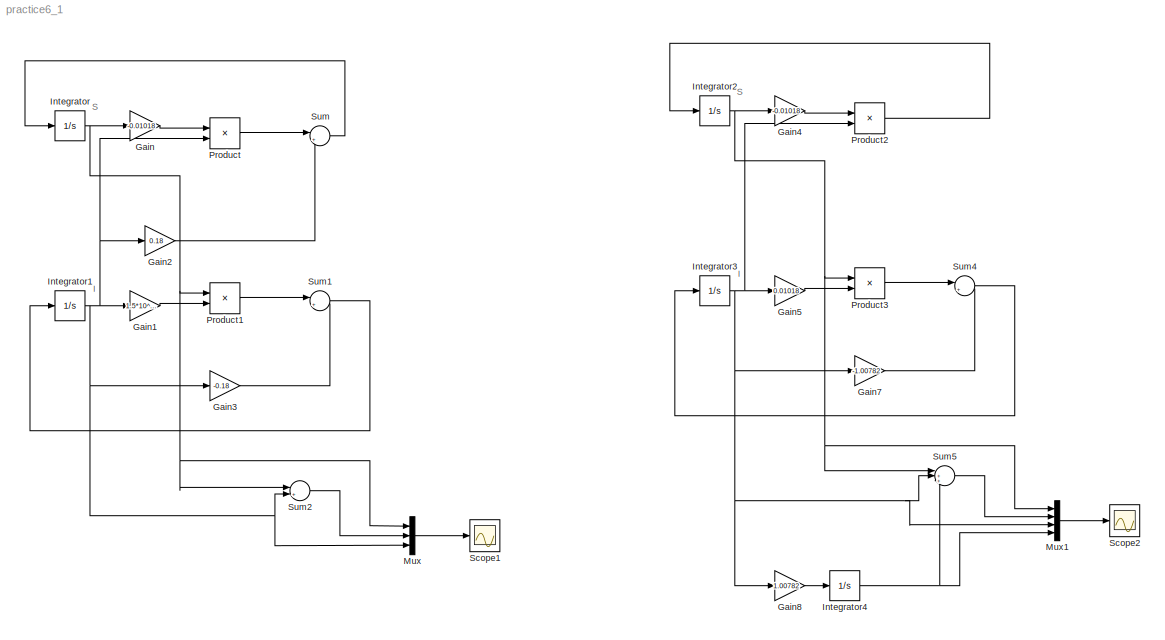
MODEL practice6_1
KIND model
BLOCK [Gain] Gain
  Gain = -0.01018
  OutDataTypeStr = Inherit: Inherit via internal rule
  ParamDataTypeStr = Inherit: Inherit via internal rule
  SID = 14
  SaturateOnIntegerOverflow = off
BLOCK [Gain] Gain1
  Gain = 1.5*10^-6
  OutDataTypeStr = Inherit: Inherit via internal rule
  ParamDataTypeStr = Inherit: Inherit via internal rule
  SID = 15
  SaturateOnIntegerOverflow = off
BLOCK [Gain] Gain2
  Gain = 0.18
  OutDataTypeStr = Inherit: Inherit via internal rule
  ParamDataTypeStr = Inherit: Inherit via internal rule
  SID = 20
  SaturateOnIntegerOverflow = off
BLOCK [Gain] Gain3
  Gain = -0.18
  OutDataTypeStr = Inherit: Inherit via internal rule
  ParamDataTypeStr = Inherit: Inherit via internal rule
  SID = 22
  SaturateOnIntegerOverflow = off
BLOCK [Gain] Gain4
  Gain = -0.01018
  OutDataTypeStr = Inherit: Inherit via internal rule
  ParamDataTypeStr = Inherit: Inherit via internal rule
  SID = 48
  SaturateOnIntegerOverflow = off
BLOCK [Gain] Gain5
  Gain = 0.01018
  OutDataTypeStr = Inherit: Inherit via internal rule
  ParamDataTypeStr = Inherit: Inherit via internal rule
  SID = 49
  SaturateOnIntegerOverflow = off
BLOCK [Gain] Gain7
  Gain = -1.00782
  OutDataTypeStr = Inherit: Inherit via internal rule
  ParamDataTypeStr = Inherit: Inherit via internal rule
  SID = 51
  SaturateOnIntegerOverflow = off
BLOCK [Gain] Gain8
  Gain = 1.00782
  OutDataTypeStr = Inherit: Inherit via internal rule
  ParamDataTypeStr = Inherit: Inherit via internal rule
  SID = 64
  SaturateOnIntegerOverflow = off
BLOCK [Integrator] Integrator
  InitialCondition = 99
  Ports = [1, 1]
  SID = 12
BLOCK [Integrator] Integrator1
  InitialCondition = 1
  Ports = [1, 1]
  SID = 13
BLOCK [Integrator] Integrator2
  InitialCondition = 99
  Ports = [1, 1]
  SID = 52
BLOCK [Integrator] Integrator3
  InitialCondition = 1
  Ports = [1, 1]
  SID = 53
BLOCK [Integrator] Integrator4
  Ports = [1, 1]
  SID = 63
BLOCK [Mux] Mux
  DisplayOption = bar
  Inputs = 3
  Ports = [3, 1]
  SID = 25
BLOCK [Mux] Mux1
  DisplayOption = bar
  Ports = [4, 1]
  SID = 54
BLOCK [Product] Product
  InputSameDT = off
  OutDataTypeStr = Inherit: Inherit via internal rule
  Ports = [2, 1]
  SID = 19
  SaturateOnIntegerOverflow = off
BLOCK [Product] Product1
  InputSameDT = off
  OutDataTypeStr = Inherit: Inherit via internal rule
  Ports = [2, 1]
  SID = 21
  SaturateOnIntegerOverflow = off
BLOCK [Product] Product2
  InputSameDT = off
  OutDataTypeStr = Inherit: Inherit via internal rule
  Ports = [2, 1]
  SID = 55
  SaturateOnIntegerOverflow = off
BLOCK [Product] Product3
  InputSameDT = off
  OutDataTypeStr = Inherit: Inherit via internal rule
  Ports = [2, 1]
  SID = 56
  SaturateOnIntegerOverflow = off
BLOCK [Scope] Scope1
  DataFormat = StructureWithTime
  Floating = off
  NumInputPorts = 1
  Ports = [1]
  SID = 27
  SampleTime = 0
  SaveName = ScopeData1
  ShowLegends = off
  TimeRange = 10
BLOCK [Scope] Scope2
  DataFormat = StructureWithTime
  Floating = off
  NumInputPorts = 1
  Ports = [1]
  SID = 57
  SampleTime = 0
  SaveToWorkspace = on
  ShowLegends = off
  TimeRange = 10
BLOCK [Sum] Sum
  IconShape = round
  InputSameDT = off
  Inputs = |++
  OutDataTypeStr = Inherit: Inherit via internal rule
  Ports = [2, 1]
  SID = 18
  SaturateOnIntegerOverflow = off
BLOCK [Sum] Sum1
  IconShape = round
  InputSameDT = off
  Inputs = |++
  OutDataTypeStr = Inherit: Inherit via internal rule
  Ports = [2, 1]
  SID = 23
  SaturateOnIntegerOverflow = off
BLOCK [Sum] Sum2
  IconShape = round
  InputSameDT = off
  Inputs = |++
  OutDataTypeStr = Inherit: Inherit via internal rule
  Ports = [2, 1]
  SID = 24
  SaturateOnIntegerOverflow = off
BLOCK [Sum] Sum4
  IconShape = round
  InputSameDT = off
  Inputs = |++
  OutDataTypeStr = Inherit: Inherit via internal rule
  Ports = [2, 1]
  SID = 59
  SaturateOnIntegerOverflow = off
BLOCK [Sum] Sum5
  IconShape = round
  InputSameDT = off
  Inputs = |+++
  OutDataTypeStr = Inherit: Inherit via internal rule
  Ports = [3, 1]
  SID = 60
  SaturateOnIntegerOverflow = off
ANNOTATION (root): I
ANNOTATION (root): S
LINE Gain1:1 -> Product1:2
LINE Gain2:1 -> Sum:2
LINE Gain3:1 -> Sum1:2
LINE Gain4:1 -> Product2:1
LINE Gain5:1 -> Product3:2
LINE Gain7:1 -> Sum4:2
LINE Gain8:1 -> Integrator4:1
LINE Gain:1 -> Product:1
NET Integrator1:1 -> Gain1:1, Gain2:1, Gain3:1, Mux:3, Product:2, Sum2:2
NET Integrator2:1 -> Gain4:1, Mux1:1, Product3:1, Sum5:1
NET Integrator3:1 -> Gain5:1, Gain7:1, Gain8:1, Mux1:3, Product2:2, Sum5:2
NET Integrator4:1 -> Mux1:4, Sum5:3
NET Integrator:1 -> Gain:1, Mux:1, Product1:1, Sum2:1
LINE Mux1:1 -> Scope2:1
LINE Mux:1 -> Scope1:1
LINE Product1:1 -> Sum1:1
LINE Product2:1 -> Integrator2:1
LINE Product3:1 -> Sum4:1
LINE Product:1 -> Sum:1
LINE Sum1:1 -> Integrator1:1
LINE Sum2:1 -> Mux:2
LINE Sum4:1 -> Integrator3:1
LINE Sum5:1 -> Mux1:2
LINE Sum:1 -> Integrator:1
note: NET lines group one-source signal fan-out (src -> all destinations, sorted); 1:1 wires keep LINE
